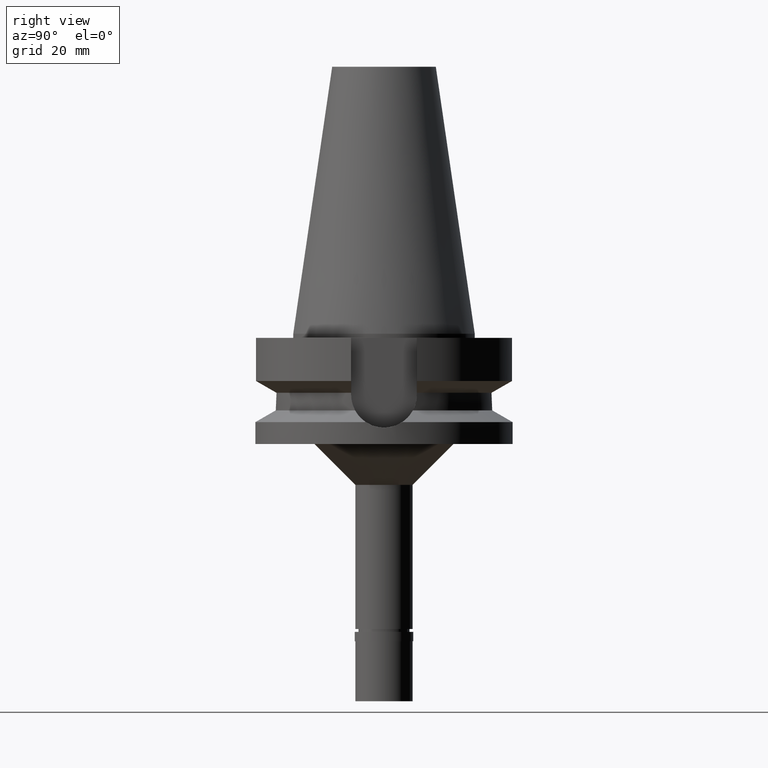
[diagram: clean part render]
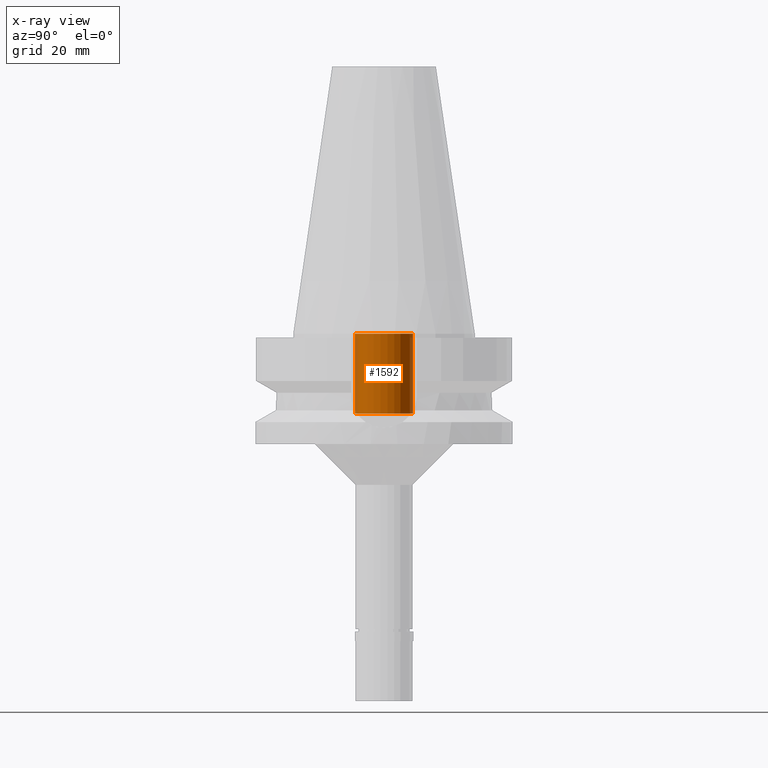
[diagram: x-ray — body ghosted, one internal face saturated and labeled with its STEP entity id]
A machine part, right view, then the same camera in x-ray: the body is ghosted and one INTERNAL B-rep face — a face not visible from any outside direction — is saturated and labeled: STEP entity #1592.
In plain terms, the highlighted cylindrical surface (edge-blend (fillet) strip) has radius 7.1 mm, axis along (0, 0, -1).
Its self-contained STEP definition (entity closure, byte-faithful):
#3 = DIRECTION ( 'NONE',  ( 0.0000000000000000000, 0.0000000000000000000, 1.000000000000000000 ) ) ;
#136 = CIRCLE ( 'NONE', #1881, 7.100000000000000533 ) ;
#243 = DIRECTION ( 'NONE',  ( 0.0000000000000000000, 0.0000000000000000000, 1.000000000000000000 ) ) ;
#282 = VERTEX_POINT ( 'NONE', #2396 ) ;
#285 = EDGE_CURVE ( 'NONE', #282, #1887, #362, .T. ) ;
#353 = CARTESIAN_POINT ( 'NONE',  ( 0.0000000000000000000, 2.118271568485000005E-14, 1.705302565823999875E-13 ) ) ;
#362 = CIRCLE ( 'NONE', #1110, 7.100000000000000533 ) ;
#369 = DIRECTION ( 'NONE',  ( 0.0000000000000000000, -1.000000000000000000, 0.0000000000000000000 ) ) ;
#406 = ORIENTED_EDGE ( 'NONE', *, *, #1722, .F. ) ;
#427 = EDGE_LOOP ( 'NONE', ( #2221, #899, #1879, #406 ) ) ;
#445 = CARTESIAN_POINT ( 'NONE',  ( 0.0000000000000000000, 7.100000000000000533, -19.59999999999999787 ) ) ;
#621 = DIRECTION ( 'NONE',  ( 0.0000000000000000000, 0.0000000000000000000, 1.000000000000000000 ) ) ;
#671 = LINE ( 'NONE', #1763, #2725 ) ;
#786 = CARTESIAN_POINT ( 'NONE',  ( 0.0000000000000000000, 7.100000000000000533, -19.59999999999999787 ) ) ;
#807 = CARTESIAN_POINT ( 'NONE',  ( 0.0000000000000000000, 2.118271568485000005E-14, -19.59999999999999787 ) ) ;
#871 = CYLINDRICAL_SURFACE ( 'NONE', #1219, 7.100000000000000533 ) ;
#899 = ORIENTED_EDGE ( 'NONE', *, *, #1638, .T. ) ;
#1101 = DIRECTION ( 'NONE',  ( 0.0000000000000000000, 0.0000000000000000000, -1.000000000000000000 ) ) ;
#1110 = AXIS2_PLACEMENT_3D ( 'NONE', #353, #621, #369 ) ;
#1219 = AXIS2_PLACEMENT_3D ( 'NONE', #2893, #1101, #1544 ) ;
#1272 = VERTEX_POINT ( 'NONE', #786 ) ;
#1316 = CARTESIAN_POINT ( 'NONE',  ( 0.0000000000000000000, -7.100000000000000533, -19.59999999999999787 ) ) ;
#1452 = EDGE_CURVE ( 'NONE', #1272, #1608, #136, .T. ) ;
#1544 = DIRECTION ( 'NONE',  ( 0.0000000000000000000, -1.000000000000000000, 0.0000000000000000000 ) ) ;
#1592 = ADVANCED_FACE ( 'NONE', ( #2248 ), #871, .F. ) ;
#1608 = VERTEX_POINT ( 'NONE', #1316 ) ;
#1638 = EDGE_CURVE ( 'NONE', #1608, #282, #671, .T. ) ;
#1689 = DIRECTION ( 'NONE',  ( 0.0000000000000000000, 0.0000000000000000000, -1.000000000000000000 ) ) ;
#1697 = VECTOR ( 'NONE', #3, 1000.000000000000000 ) ;
#1722 = EDGE_CURVE ( 'NONE', #1272, #1887, #2220, .T. ) ;
#1763 = CARTESIAN_POINT ( 'NONE',  ( 0.0000000000000000000, -7.100000000000000533, -19.59999999999999787 ) ) ;
#1879 = ORIENTED_EDGE ( 'NONE', *, *, #285, .T. ) ;
#1881 = AXIS2_PLACEMENT_3D ( 'NONE', #807, #1689, #1957 ) ;
#1887 = VERTEX_POINT ( 'NONE', #2791 ) ;
#1957 = DIRECTION ( 'NONE',  ( 0.0000000000000000000, 1.000000000000000000, 0.0000000000000000000 ) ) ;
#2220 = LINE ( 'NONE', #445, #1697 ) ;
#2221 = ORIENTED_EDGE ( 'NONE', *, *, #1452, .T. ) ;
#2248 = FACE_OUTER_BOUND ( 'NONE', #427, .T. ) ;
#2396 = CARTESIAN_POINT ( 'NONE',  ( 0.0000000000000000000, -7.100000000000000533, 1.421085471519999938E-13 ) ) ;
#2725 = VECTOR ( 'NONE', #243, 1000.000000000000000 ) ;
#2791 = CARTESIAN_POINT ( 'NONE',  ( 0.0000000000000000000, 7.100000000000000533, 1.421085471519999938E-13 ) ) ;
#2893 = CARTESIAN_POINT ( 'NONE',  ( 0.0000000000000000000, 2.118271568485000005E-14, 72.96999999999999886 ) ) ;